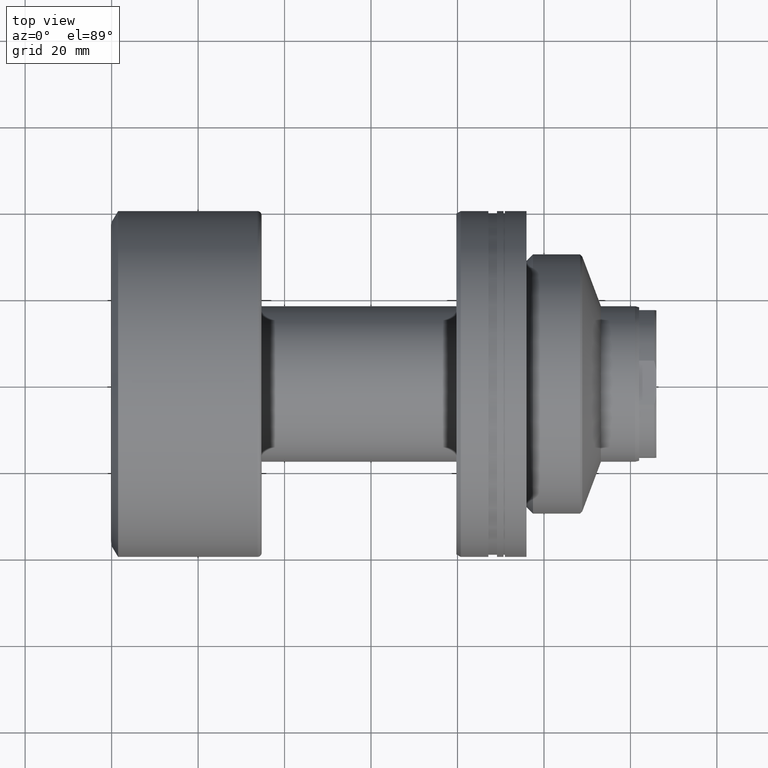
[diagram: clean part render]
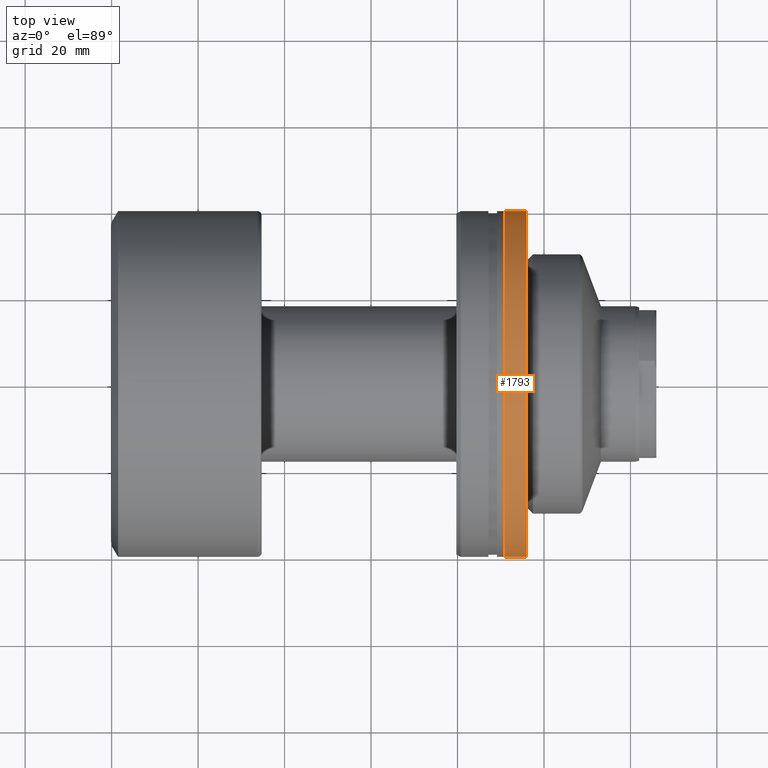
[diagram: same view with one face highlighted and labeled with its STEP entity id]
A machine part, top view. The second image highlights one B-rep face of the part: STEP entity #1793.
In plain terms, the highlighted cylindrical surface (partial cylindrical patch) has radius 40 mm, axis along (1, 0, 0).
Its self-contained STEP definition (entity closure, byte-faithful):
#42 = CARTESIAN_POINT ( 'NONE',  ( -29.00000000000001066, 4.784913243636394851E-16, 0.000000000000000000 ) ) ;
#124 = VERTEX_POINT ( 'NONE', #965 ) ;
#167 = CARTESIAN_POINT ( 'NONE',  ( -30.28002276692733830, 40.00000000000000711, 0.000000000000000000 ) ) ;
#235 = CARTESIAN_POINT ( 'NONE',  ( -28.99999999999999645, -40.00000000000000711, 4.898587196589413815E-15 ) ) ;
#263 = VERTEX_POINT ( 'NONE', #2262 ) ;
#313 = CARTESIAN_POINT ( 'NONE',  ( -30.28002276692730987, -40.00000000000000711, 4.898587196589413815E-15 ) ) ;
#522 = EDGE_CURVE ( 'NONE', #124, #2034, #1852, .T. ) ;
#532 = CYLINDRICAL_SURFACE ( 'NONE', #1086, 40.00000000000000711 ) ;
#564 = VECTOR ( 'NONE', #1750, 1000.000000000000000 ) ;
#665 = CIRCLE ( 'NONE', #962, 40.00000000000000711 ) ;
#804 = CARTESIAN_POINT ( 'NONE',  ( -23.99999999999999289, -40.00000000000000711, 4.898587196589413815E-15 ) ) ;
#842 = DIRECTION ( 'NONE',  ( -3.469446951953613696E-16, 1.000000000000000000, 0.000000000000000000 ) ) ;
#891 = DIRECTION ( 'NONE',  ( 1.000000000000000000, 3.738146982434194072E-16, -0.000000000000000000 ) ) ;
#935 = EDGE_CURVE ( 'NONE', #124, #263, #1774, .T. ) ;
#962 = AXIS2_PLACEMENT_3D ( 'NONE', #1666, #1015, #842 ) ;
#965 = CARTESIAN_POINT ( 'NONE',  ( -29.00000000000002487, 40.00000000000000711, 0.000000000000000000 ) ) ;
#970 = ORIENTED_EDGE ( 'NONE', *, *, #522, .T. ) ;
#1015 = DIRECTION ( 'NONE',  ( 1.000000000000000000, 3.738146982434194072E-16, -0.000000000000000000 ) ) ;
#1086 = AXIS2_PLACEMENT_3D ( 'NONE', #1250, #1262, #1951 ) ;
#1108 = EDGE_CURVE ( 'NONE', #263, #1719, #665, .T. ) ;
#1155 = ORIENTED_EDGE ( 'NONE', *, *, #1108, .F. ) ;
#1250 = CARTESIAN_POINT ( 'NONE',  ( -30.28002276692732408, 0.000000000000000000, 0.000000000000000000 ) ) ;
#1262 = DIRECTION ( 'NONE',  ( 1.000000000000000000, 3.738146982434194072E-16, -0.000000000000000000 ) ) ;
#1264 = ORIENTED_EDGE ( 'NONE', *, *, #1902, .T. ) ;
#1428 = FACE_OUTER_BOUND ( 'NONE', #2080, .T. ) ;
#1601 = AXIS2_PLACEMENT_3D ( 'NONE', #42, #1858, #2204 ) ;
#1653 = ORIENTED_EDGE ( 'NONE', *, *, #935, .F. ) ;
#1666 = CARTESIAN_POINT ( 'NONE',  ( -24.00000000000000711, 2.347564815580738247E-15, 0.000000000000000000 ) ) ;
#1719 = VERTEX_POINT ( 'NONE', #804 ) ;
#1750 = DIRECTION ( 'NONE',  ( 1.000000000000000000, 3.738146982434194072E-16, -0.000000000000000000 ) ) ;
#1774 = LINE ( 'NONE', #167, #1926 ) ;
#1793 = ADVANCED_FACE ( 'NONE', ( #1428 ), #532, .T. ) ;
#1852 = CIRCLE ( 'NONE', #1601, 40.00000000000000711 ) ;
#1858 = DIRECTION ( 'NONE',  ( 1.000000000000000000, 3.738146982434194072E-16, -0.000000000000000000 ) ) ;
#1902 = EDGE_CURVE ( 'NONE', #2034, #1719, #2149, .T. ) ;
#1926 = VECTOR ( 'NONE', #891, 1000.000000000000000 ) ;
#1951 = DIRECTION ( 'NONE',  ( -3.469446951953613696E-16, 1.000000000000000000, 0.000000000000000000 ) ) ;
#2034 = VERTEX_POINT ( 'NONE', #235 ) ;
#2080 = EDGE_LOOP ( 'NONE', ( #970, #1264, #1155, #1653 ) ) ;
#2149 = LINE ( 'NONE', #313, #564 ) ;
#2204 = DIRECTION ( 'NONE',  ( -3.469446951953613696E-16, 1.000000000000000000, 0.000000000000000000 ) ) ;
#2262 = CARTESIAN_POINT ( 'NONE',  ( -24.00000000000002132, 40.00000000000000711, 0.000000000000000000 ) ) ;